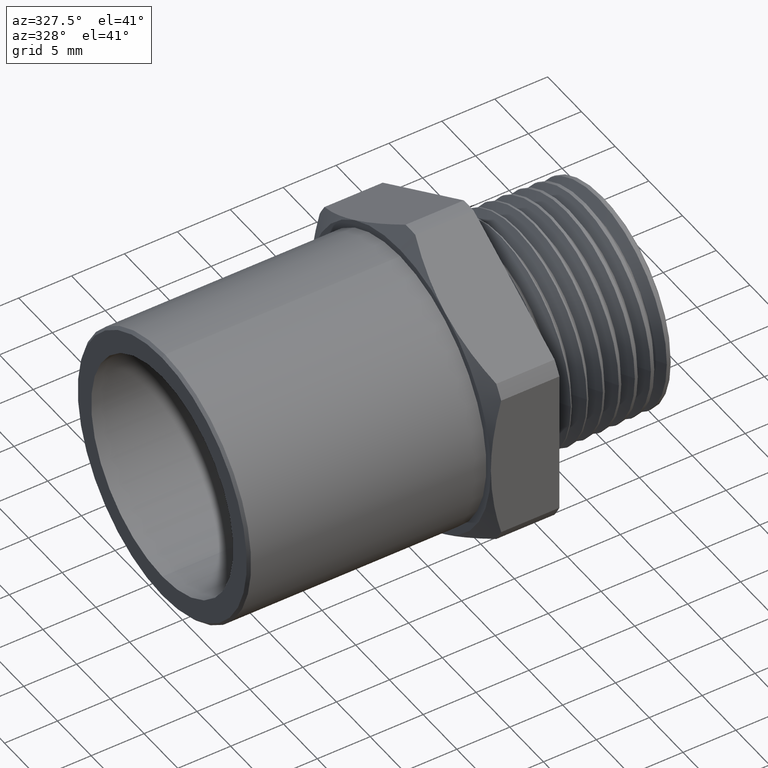
[diagram: clean part render]
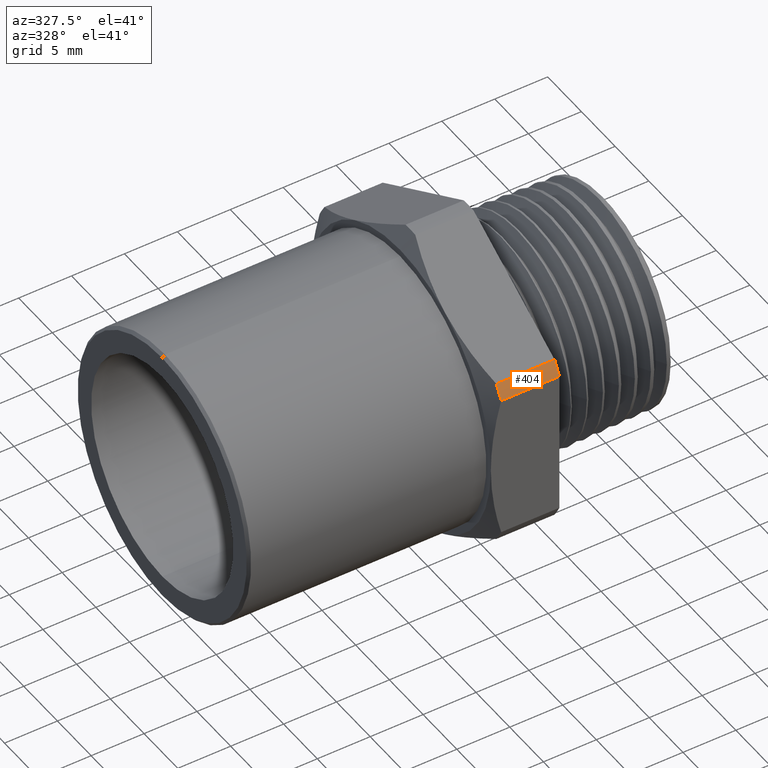
[diagram: same view with one face highlighted and labeled with its STEP entity id]
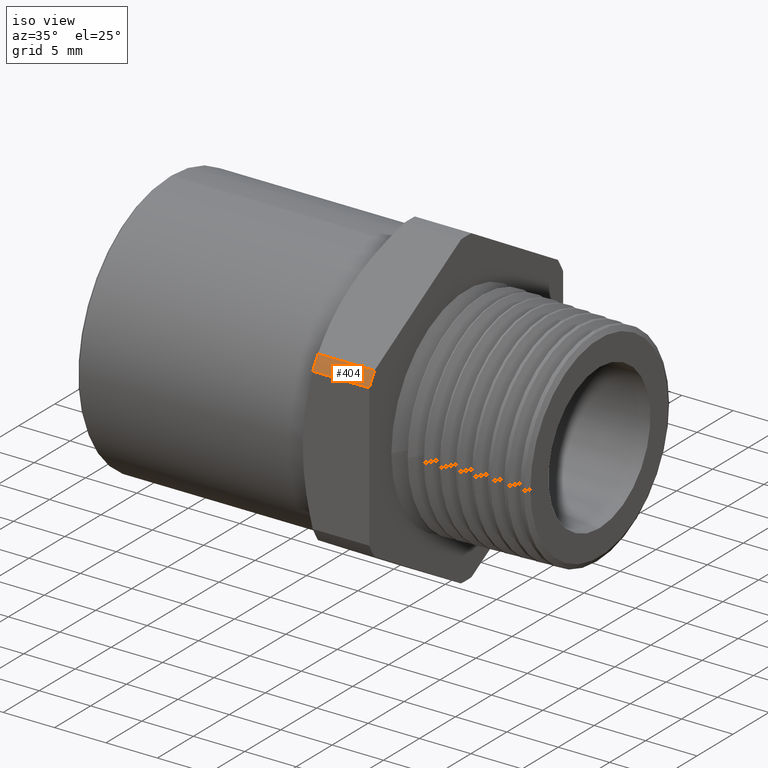
[diagram: same view with one face highlighted and labeled with its STEP entity id]
A machine part, auxiliary view. The second image highlights one B-rep face of the part: STEP entity #404.
A second angle (iso view) of the same face is appended — the face is thin or edge-on in the first view.
In plain terms, the highlighted cylindrical surface (partial cylindrical patch) has radius 15.1447 mm, axis along (-1, 0, 0).
Its self-contained STEP definition (entity closure, byte-faithful):
#324 = VERTEX_POINT ( 'NONE', #1029 ) ;
#325 = ORIENTED_EDGE ( 'NONE', *, *, #326, .F. ) ;
#326 = EDGE_CURVE ( 'NONE', #327, #408, #1028, .T. ) ;
#327 = VERTEX_POINT ( 'NONE', #1024 ) ;
#328 = ORIENTED_EDGE ( 'NONE', *, *, #329, .T. ) ;
#329 = EDGE_CURVE ( 'NONE', #327, #330, #1023, .T. ) ;
#330 = VERTEX_POINT ( 'NONE', #1018 ) ;
#331 = ORIENTED_EDGE ( 'NONE', *, *, #332, .T. ) ;
#332 = EDGE_CURVE ( 'NONE', #330, #324, #1017, .T. ) ;
#404 = ADVANCED_FACE ( 'NONE', ( #1203 ), #1202, .T. ) ;
#405 = EDGE_LOOP ( 'NONE', ( #406, #325, #328, #331 ) ) ;
#406 = ORIENTED_EDGE ( 'NONE', *, *, #407, .F. ) ;
#407 = EDGE_CURVE ( 'NONE', #408, #324, #1196, .T. ) ;
#408 = VERTEX_POINT ( 'NONE', #1192 ) ;
#1014 = DIRECTION ( 'NONE',  ( -1.000000000000000000, 0.0000000000000000000, 0.0000000000000000000 ) ) ;
#1015 = VECTOR ( 'NONE', #1014, 39.37007874015748100 ) ;
#1016 = CARTESIAN_POINT ( 'NONE',  ( 1.193314169861214900, -0.5015598166954820000, 0.3224155901571671400 ) ) ;
#1017 = LINE ( 'NONE', #1016, #1015 ) ;
#1018 = CARTESIAN_POINT ( 'NONE',  ( -0.5100000000000000100, -0.5015598166954821100, 0.3224155901571672000 ) ) ;
#1019 = DIRECTION ( 'NONE',  ( 0.0000000000000000000, 0.0000000000000000000, 1.000000000000000000 ) ) ;
#1020 = DIRECTION ( 'NONE',  ( -1.000000000000000000, 0.0000000000000000000, 0.0000000000000000000 ) ) ;
#1021 = CARTESIAN_POINT ( 'NONE',  ( -0.5100000000000000100, 0.0000000000000000000, 0.0000000000000000000 ) ) ;
#1022 = AXIS2_PLACEMENT_3D ( 'NONE', #1021, #1020, #1019 ) ;
#1023 = CIRCLE ( 'NONE', #1022, 0.5962499999999999500 ) ;
#1024 = CARTESIAN_POINT ( 'NONE',  ( -0.5100000000000000100, -0.5299999999999998000, 0.2731557476971703300 ) ) ;
#1025 = DIRECTION ( 'NONE',  ( -1.000000000000000000, 0.0000000000000000000, 0.0000000000000000000 ) ) ;
#1026 = VECTOR ( 'NONE', #1025, 39.37007874015748100 ) ;
#1027 = CARTESIAN_POINT ( 'NONE',  ( 1.193314169861214900, -0.5299999999999996900, 0.2731557476971704400 ) ) ;
#1028 = LINE ( 'NONE', #1027, #1026 ) ;
#1029 = CARTESIAN_POINT ( 'NONE',  ( -0.7267505446661873800, -0.5015598166954820000, 0.3224155901571671400 ) ) ;
#1192 = CARTESIAN_POINT ( 'NONE',  ( -0.7267505446661873800, -0.5299999999999996900, 0.2731557476971704400 ) ) ;
#1193 = DIRECTION ( 'NONE',  ( 0.0000000000000000000, 0.0000000000000000000, -1.000000000000000000 ) ) ;
#1194 = DIRECTION ( 'NONE',  ( -1.000000000000000000, 0.0000000000000000000, 0.0000000000000000000 ) ) ;
#1195 = AXIS2_PLACEMENT_3D ( 'NONE', #1201, #1194, #1193 ) ;
#1196 = CIRCLE ( 'NONE', #1195, 0.5962499999999999500 ) ;
#1197 = DIRECTION ( 'NONE',  ( 0.0000000000000000000, 0.0000000000000000000, 1.000000000000000000 ) ) ;
#1198 = DIRECTION ( 'NONE',  ( -1.000000000000000000, 0.0000000000000000000, 0.0000000000000000000 ) ) ;
#1199 = CARTESIAN_POINT ( 'NONE',  ( -0.5911096051061856000, 0.0000000000000000000, 0.0000000000000000000 ) ) ;
#1200 = AXIS2_PLACEMENT_3D ( 'NONE', #1199, #1198, #1197 ) ;
#1201 = CARTESIAN_POINT ( 'NONE',  ( -0.7267505446661873800, 0.0000000000000000000, 0.0000000000000000000 ) ) ;
#1202 = CYLINDRICAL_SURFACE ( 'NONE', #1200, 0.5962499999999999500 ) ;
#1203 = FACE_OUTER_BOUND ( 'NONE', #405, .T. ) ;